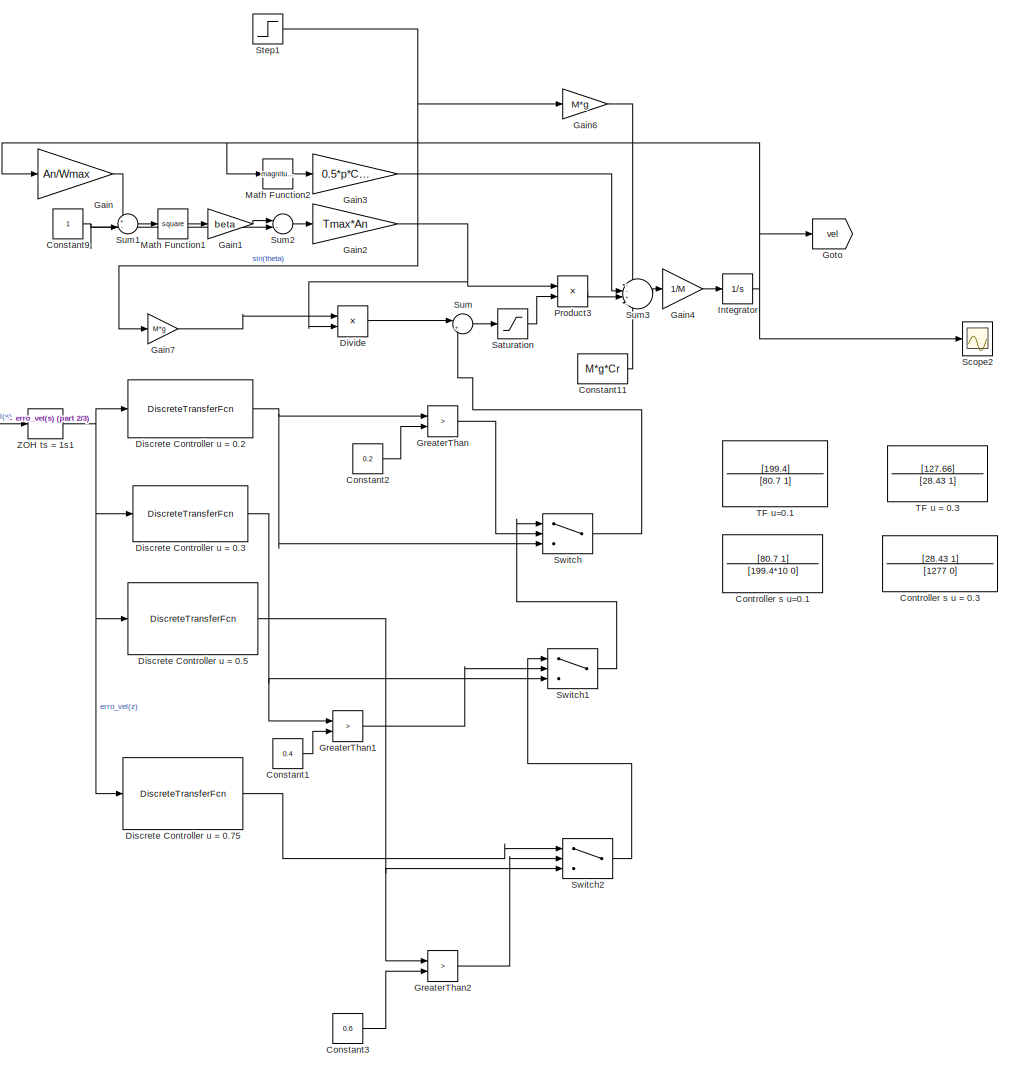
[diagram: root canvas - part 1/3, center side, full height]
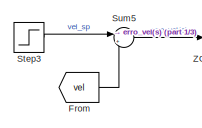
[diagram: root canvas - part 2/3, middle left region]
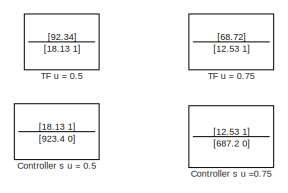
[diagram: root canvas - part 3/3, middle right region]
MODEL slx_ab87de9b345e
KIND model
CONFIG AbsTol = auto
CONFIG EnableMultiTasking = off
CONFIG FixedStep = auto
CONFIG MaxStep = auto
CONFIG MinStep = auto
CONFIG RelTol = 1e-3
CONFIG SampleTimeConstraint = Unconstrained
CONFIG SolverName = VariableStepAuto
CONFIG StartTime = 0.0
CONFIG StopTime = 200
BLOCK [Constant] Constant1
  Value = 0.4
BLOCK [Constant] Constant11
  Value = M*g*Cr
BLOCK [Constant] Constant2
  Value = 0.2
BLOCK [Constant] Constant3
  Value = 0.6
BLOCK [Constant] Constant9
BLOCK [TransferFcn] Controller s u = 0.3
  Denominator = [1277 0]
  Numerator = [28.43 1]
BLOCK [TransferFcn] Controller s u = 0.5
  Denominator = [923.4 0]
  Numerator = [18.13 1]
BLOCK [TransferFcn] Controller s u =0.75
  Denominator = [687.2 0]
  Numerator = [12.53 1]
BLOCK [TransferFcn] Controller s u=0.1
  Denominator = [199.4*10 0]
  Numerator = [80.7 1]
BLOCK [DiscreteTransferFcn] Discrete Controller u = 0.2
  Denominator = [1 -1]
  InputPortMap = u0
  Numerator = [0.04047 -0.03997]
  Ports = [1, 1]
BLOCK [DiscreteTransferFcn] Discrete Controller u = 0.3
  Denominator = [1 -1]
  InputPortMap = u0
  Numerator = [0.02227 -0.02149]
  Ports = [1, 1]
BLOCK [DiscreteTransferFcn] Discrete Controller u = 0.5
  Denominator = [1 -1]
  InputPortMap = u0
  Numerator = [0.01963 -0.01855]
  Ports = [1, 1]
BLOCK [DiscreteTransferFcn] Discrete Controller u = 0.75
  Denominator = [1 -1]
  InputPortMap = u0
  Numerator = [0.01823 -0.01678]
  Ports = [1, 1]
BLOCK [Product] Divide
  Inputs = */
  Ports = [2, 1]
BLOCK [From] From
  GotoTag = vel
BLOCK [Gain] Gain
  Gain = An/Wmax
BLOCK [Gain] Gain1
  Gain = beta
BLOCK [Gain] Gain2
  Gain = Tmax*An
BLOCK [Gain] Gain3
  Gain = 0.5*p*Cd*A
BLOCK [Gain] Gain4
  Gain = 1/M
BLOCK [Gain] Gain6
  Gain = M*g
BLOCK [Gain] Gain7
  Gain = M*g
BLOCK [Goto] Goto
  GotoTag = vel
BLOCK [RelationalOperator] GreaterThan
  InputSameDT = off
  Operator = >
  OutDataTypeStr = boolean
  Ports = [2, 1]
  RndMeth = Simplest
BLOCK [RelationalOperator] GreaterThan1
  InputSameDT = off
  Operator = >
  OutDataTypeStr = boolean
  Ports = [2, 1]
  RndMeth = Simplest
BLOCK [RelationalOperator] GreaterThan2
  InputSameDT = off
  Operator = >
  OutDataTypeStr = boolean
  Ports = [2, 1]
  RndMeth = Simplest
BLOCK [Integrator] Integrator
  Ports = [1, 1]
BLOCK [Math] Math Function1
  Operator = square
  Ports = [1, 1]
BLOCK [Math] Math Function2
  Operator = magnitude^2
  Ports = [1, 1]
BLOCK [Product] Product3
  Ports = [2, 1]
BLOCK [Saturate] Saturation
  LowerLimit = 0
  UpperLimit = 1
BLOCK [Scope] Scope2
  Floating = off
  NumInputPorts = 1
  Ports = [1]
  ScopeSpecificationString = Simulink.scopes.TimeScopeBlockCfg('CurrentConfiguration', extmgr.ConfigurationSet(extmgr.Configuration('Core','General UI',true),extmgr.Configuration('Core','Source UI',true),extmgr.Configuration('Sources','WiredSimulink',true,'DataLoggingVariableName','ScopeData2'),extmgr.Configuration('Visuals','Time Domain',true,'SerializedDisplays',{struct('MinYLimReal','-6.55047','MaxYLimReal','57.97424','YLa...<+1471ch>
BLOCK [Step] Step1
  After = 0.2
  SampleTime = 0
  Time = 5
BLOCK [Step] Step3
  After = 20
  SampleTime = 0
BLOCK [Sum] Sum
  Inputs = |++
  Ports = [2, 1]
BLOCK [Sum] Sum1
  Inputs = +-|
  Ports = [2, 1]
BLOCK [Sum] Sum2
  Inputs = |-+
  Ports = [2, 1]
BLOCK [Sum] Sum3
  Inputs = --+|-
  Ports = [4, 1]
BLOCK [Sum] Sum5
  Inputs = |+-
  Ports = [2, 1]
BLOCK [Switch] Switch
  Criteria = u2 > Threshold
  InputSameDT = off
  SaturateOnIntegerOverflow = off
BLOCK [Switch] Switch1
  Criteria = u2 > Threshold
  InputSameDT = off
  SaturateOnIntegerOverflow = off
BLOCK [Switch] Switch2
  Criteria = u2 > Threshold
  InputSameDT = off
  SaturateOnIntegerOverflow = off
BLOCK [TransferFcn] TF u = 0.3
  Denominator = [28.43 1]
  Numerator = [127.66]
BLOCK [TransferFcn] TF u = 0.5
  Denominator = [18.13 1]
  Numerator = [92.34]
BLOCK [TransferFcn] TF u = 0.75
  Denominator = [12.53 1]
  Numerator = [68.72]
BLOCK [TransferFcn] TF u=0.1
  Denominator = [80.7 1]
  Numerator = [199.4]
BLOCK [ZeroOrderHold] ZOH ts = 1s1
LINE Constant11:1 -> Sum3:4
LINE Constant1:1 -> GreaterThan1:2
LINE Constant2:1 -> GreaterThan:2
LINE Constant3:1 -> GreaterThan2:2
NET Constant9:1 -> Sum1:2, Sum2:2
NET Discrete Controller u = 0.2:1 -> GreaterThan:1, Switch:3
NET Discrete Controller u = 0.3:1 -> GreaterThan1:1, Switch1:3
NET Discrete Controller u = 0.5:1 -> GreaterThan2:1, Switch2:3
LINE Discrete Controller u = 0.75:1 -> Switch2:1
LINE Divide:1 -> Sum:1
LINE From:1 -> Sum5:2
LINE Gain1:1 -> Sum2:1
NET Gain2:1 -> Divide:2, Product3:1
LINE Gain3:1 -> Sum3:2
LINE Gain4:1 -> Integrator:1
LINE Gain6:1 -> Sum3:1
LINE Gain7:1 -> Divide:1
LINE Gain:1 -> Sum1:1
LINE GreaterThan1:1 -> Switch1:2
LINE GreaterThan2:1 -> Switch2:2
LINE GreaterThan:1 -> Switch:2
NET Integrator:1 -> Gain:1, Goto:1, Math Function2:1, Scope2:1
LINE Math Function1:1 -> Gain1:1
LINE Math Function2:1 -> Gain3:1
LINE Product3:1 -> Sum3:3
LINE Saturation:1 -> Product3:2
NET Step1:1 -> Gain6:1, Gain7:1
LINE Step3:1 -> Sum5:1
LINE Sum1:1 -> Math Function1:1
LINE Sum2:1 -> Gain2:1
LINE Sum3:1 -> Gain4:1
LINE Sum5:1 -> ZOH ts = 1s1:1
LINE Sum:1 -> Saturation:1
LINE Switch1:1 -> Switch:1
LINE Switch2:1 -> Switch1:1
LINE Switch:1 -> Sum:2
NET ZOH ts = 1s1:1 -> Discrete Controller u = 0.2:1, Discrete Controller u = 0.3:1, Discrete Controller u = 0.5:1, Discrete Controller u = 0.75:1
note: NET lines group one-source signal fan-out (src -> all destinations, sorted); 1:1 wires keep LINE
